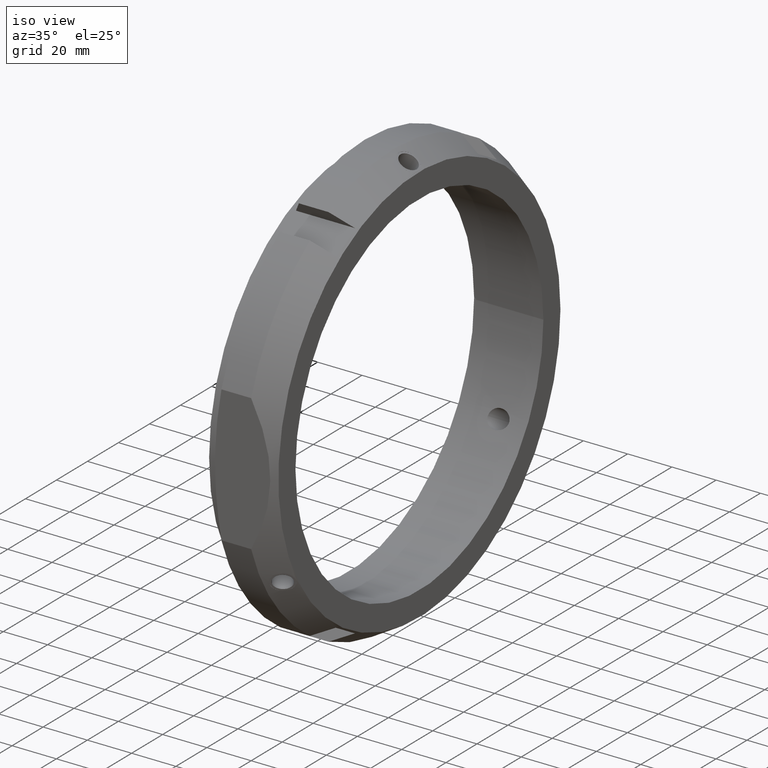
[diagram: clean part render]
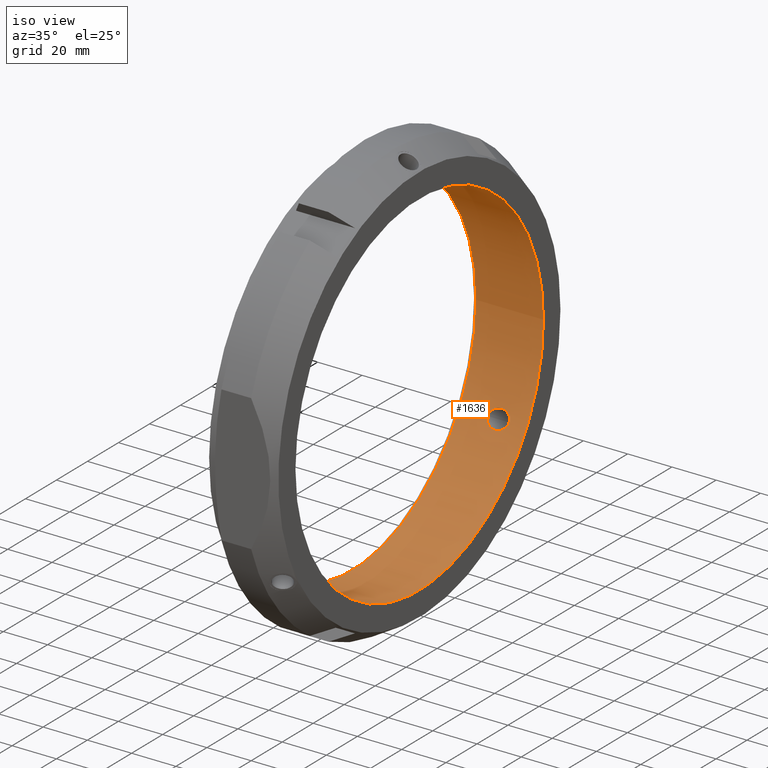
[diagram: same view with one face highlighted and labeled with its STEP entity id]
A machine part, iso view. The second image highlights one B-rep face of the part: STEP entity #1636.
In plain terms, the highlighted cylindrical surface (bore or boss wall) has radius 80 mm, axis along (1, 0, 0).
Its self-contained STEP definition (entity closure, byte-faithful):
#1226=CARTESIAN_POINT('',(19.124688457845835,71.281032686768683,-36.318237555088146));
#1227=VERTEX_POINT('',#1226);
#1228=CARTESIAN_POINT('',(19.124688457845835,71.281032686768683,-36.318237555088146));
#1229=CARTESIAN_POINT('',(19.719975805686062,71.281032686768683,-36.318237555088146));
#1230=CARTESIAN_POINT('',(20.360835346041156,71.23558601273146,-36.407905735789306));
#1231=CARTESIAN_POINT('',(21.5620970087312,71.04299453533622,-36.782295228732018));
#1232=CARTESIAN_POINT('',(22.122473254714528,70.89561317316452,-37.066977839368974));
#1233=CARTESIAN_POINT('',(22.992383798756826,70.549508829389197,-37.721246131857356));
#1234=CARTESIAN_POINT('',(23.372628686393831,70.333180375553383,-38.124913359558789));
#1235=CARTESIAN_POINT('',(23.888888306341801,69.836460331147663,-39.027350535639641));
#1236=CARTESIAN_POINT('',(24.023907389902401,69.555483973320392,-39.526367813166303));
#1237=CARTESIAN_POINT('',(24.023907389902401,69.02036750854019,-40.453216718132268));
#1238=CARTESIAN_POINT('',(23.900107951823905,68.740284912769042,-40.927031742936286));
#1239=CARTESIAN_POINT('',(23.422376752647224,68.224709866853289,-41.780828856997189));
#1240=CARTESIAN_POINT('',(23.069407454521361,67.989271797130954,-42.161381950695358));
#1241=CARTESIAN_POINT('',(22.222375564253127,67.582745468896519,-42.810567678910338));
#1242=CARTESIAN_POINT('',(21.647730878069421,67.397296066202813,-43.100530326154129));
#1243=CARTESIAN_POINT('',(20.408223794642137,67.152331054892784,-43.481210483176639));
#1244=CARTESIAN_POINT('',(19.743360965910281,67.09303268676868,-43.572066337186612));
#1245=CARTESIAN_POINT('',(18.518693329207895,67.09303268676868,-43.572066337186612));
#1246=CARTESIAN_POINT('',(17.866740980056516,67.150118559278894,-43.484609644367112));
#1247=CARTESIAN_POINT('',(16.6552434791301,67.391426132749658,-43.109690121165265));
#1248=CARTESIAN_POINT('',(16.095836631545854,67.575633166111984,-42.821771092296558));
#1249=CARTESIAN_POINT('',(15.270006957541876,67.983296160651207,-42.171052000097447));
#1250=CARTESIAN_POINT('',(14.927836800347817,68.221479238673325,-41.786143642201466));
#1251=CARTESIAN_POINT('',(14.468717883815415,68.74052892074954,-40.926662627070897));
#1252=CARTESIAN_POINT('',(14.35213568043779,69.021199417263404,-40.451775809956388));
#1253=CARTESIAN_POINT('',(14.35213568043779,69.542865188246722,-39.548224190043683));
#1254=CARTESIAN_POINT('',(14.468717883815415,69.813793987533302,-39.067713001412642));
#1255=CARTESIAN_POINT('',(14.927836800347817,70.298601539668709,-38.1884622833431));
#1256=CARTESIAN_POINT('',(15.27000695754187,70.512850416724518,-37.78973550807639));
#1257=CARTESIAN_POINT('',(16.095836631545847,70.872558184026872,-37.11132945252303));
#1258=CARTESIAN_POINT('',(16.655243479130093,71.029799860578962,-36.807841967641146));
#1259=CARTESIAN_POINT('',(17.866740980056509,71.233835905311125,-36.411403717288955));
#1260=CARTESIAN_POINT('',(18.518693329207895,71.281032686768683,-36.318237555088146));
#1261=CARTESIAN_POINT('',(19.124688457845838,71.281032686768683,-36.318237555088146));
#1262=B_SPLINE_CURVE_WITH_KNOTS('',3,(#1228,#1229,#1230,#1231,#1232,#1233,#1234,#1235,#1236,#1237,#1238,#1239,#1240,#1241,#1242,#1243,#1244,#1245,#1246,#1247,#1248,#1249,#1250,#1251,#1252,#1253,#1254,#1255,#1256,#1257,#1258,#1259,#1260,#1261),.UNSPECIFIED.,.T.,.U.,(4,2,2,2,2,2,2,2,2,2,2,2,2,2,2,2,4),(0.0,0.178586204352068,0.357172408704136,0.521243411043331,0.685314413382526,0.842313289911455,0.999312166440383,1.184913918859718,1.370515671279052,1.552314209870434,1.734112748461816,1.890612479756813,2.047112211051809,2.203611942346806,2.360111673641802,2.541910212233185,2.723708750824567),.UNSPECIFIED.);
#1263=EDGE_CURVE('',#1227,#1227,#1262,.T.);
#1331=CARTESIAN_POINT('',(19.124688457845838,-67.093032686768709,-43.572066337186556));
#1332=VERTEX_POINT('',#1331);
#1333=CARTESIAN_POINT('',(19.124688457845838,-67.093032686768709,-43.572066337186556));
#1334=CARTESIAN_POINT('',(19.719975805686069,-67.093032686768709,-43.572066337186556));
#1335=CARTESIAN_POINT('',(20.360835346041167,-67.147964272148428,-43.487874272602255));
#1336=CARTESIAN_POINT('',(21.562097008731204,-67.375899345249181,-43.13389041415423));
#1337=CARTESIAN_POINT('',(22.122473254714539,-67.548751036990623,-42.863913105150715));
#1338=CARTESIAN_POINT('',(22.992383798756837,-67.942311827288563,-42.237043804836958));
#1339=CARTESIAN_POINT('',(23.372628686393835,-68.183733674235313,-41.847864254403));
#1340=CARTESIAN_POINT('',(23.888888306341801,-68.716907171837974,-40.966473489338277));
#1341=CARTESIAN_POINT('',(24.023907389902412,-69.008580632189776,-40.473632186833711));
#1342=CARTESIAN_POINT('',(24.023907389902412,-69.543697096969993,-39.546783281867761));
#1343=CARTESIAN_POINT('',(23.900107951823927,-69.813991647259442,-39.067317126370043));
#1344=CARTESIAN_POINT('',(23.422376752647239,-70.295614114756148,-38.193917482019202));
#1345=CARTESIAN_POINT('',(23.069407454521365,-70.507463726526368,-37.799745585772619));
#1346=CARTESIAN_POINT('',(22.222375564253127,-70.866411894817617,-37.123090594106891));
#1347=CARTESIAN_POINT('',(21.647730878069424,-71.024802212132457,-36.817505376635602));
#1348=CARTESIAN_POINT('',(20.40822379464214,-71.231998393175587,-36.415019375291521));
#1349=CARTESIAN_POINT('',(19.743360965910284,-71.281032686768697,-36.318237555088096));
#1350=CARTESIAN_POINT('',(18.518693329207895,-71.281032686768697,-36.318237555088096));
#1351=CARTESIAN_POINT('',(17.866740980056516,-71.233835905311167,-36.411403717288898));
#1352=CARTESIAN_POINT('',(16.655243479130103,-71.029799860579004,-36.807841967641089));
#1353=CARTESIAN_POINT('',(16.095836631545861,-70.8725581840269,-37.11132945252298));
#1354=CARTESIAN_POINT('',(15.270006957541884,-70.512850416724561,-37.78973550807634));
#1355=CARTESIAN_POINT('',(14.927836800347826,-70.298601539668738,-38.188462283343043));
#1356=CARTESIAN_POINT('',(14.468717883815422,-69.81379398753333,-39.067713001412578));
#1357=CARTESIAN_POINT('',(14.352135680437794,-69.542865188246765,-39.548224190043634));
#1358=CARTESIAN_POINT('',(14.352135680437794,-69.021199417263432,-40.451775809956331));
#1359=CARTESIAN_POINT('',(14.468717883815421,-68.740528920749583,-40.926662627070826));
#1360=CARTESIAN_POINT('',(14.927836800347819,-68.221479238673354,-41.786143642201417));
#1361=CARTESIAN_POINT('',(15.270006957541874,-67.983296160651236,-42.17105200009739));
#1362=CARTESIAN_POINT('',(16.095836631545851,-67.575633166111999,-42.821771092296501));
#1363=CARTESIAN_POINT('',(16.6552434791301,-67.3914261327497,-43.109690121165222));
#1364=CARTESIAN_POINT('',(17.866740980056516,-67.150118559278937,-43.484609644367069));
#1365=CARTESIAN_POINT('',(18.518693329207895,-67.093032686768709,-43.572066337186556));
#1366=CARTESIAN_POINT('',(19.124688457845835,-67.093032686768709,-43.572066337186556));
#1367=B_SPLINE_CURVE_WITH_KNOTS('',3,(#1333,#1334,#1335,#1336,#1337,#1338,#1339,#1340,#1341,#1342,#1343,#1344,#1345,#1346,#1347,#1348,#1349,#1350,#1351,#1352,#1353,#1354,#1355,#1356,#1357,#1358,#1359,#1360,#1361,#1362,#1363,#1364,#1365,#1366),.UNSPECIFIED.,.T.,.U.,(4,2,2,2,2,2,2,2,2,2,2,2,2,2,2,2,4),(0.0,0.178586204352068,0.357172408704137,0.521243411043332,0.685314413382527,0.842313289911456,0.999312166440384,1.184913918859719,1.370515671279053,1.552314209870435,1.734112748461816,1.890612479756813,2.047112211051811,2.203611942346807,2.360111673641804,2.541910212233186,2.723708750824568),.UNSPECIFIED.);
#1368=EDGE_CURVE('',#1332,#1332,#1367,.T.);
#1404=CARTESIAN_POINT('',(19.124688457845831,-4.188000000000001,79.890303892274687));
#1405=VERTEX_POINT('',#1404);
#1406=CARTESIAN_POINT('',(19.124688457845831,-4.188000000000001,79.890303892274687));
#1407=CARTESIAN_POINT('',(19.743360965910281,-4.188000000000001,79.890303892274687));
#1408=CARTESIAN_POINT('',(20.40822379464214,-4.079667338282783,79.896229858468146));
#1409=CARTESIAN_POINT('',(21.647730878069424,-3.627506145929621,79.918035702789723));
#1410=CARTESIAN_POINT('',(22.222375564253127,-3.283666425921074,79.933658273017215));
#1411=CARTESIAN_POINT('',(23.069407454521365,-2.518191929395378,79.961127536467956));
#1412=CARTESIAN_POINT('',(23.422376752647235,-2.070904247902845,79.974746339016377));
#1413=CARTESIAN_POINT('',(23.900107951823916,-1.073706734490375,79.994348869306307));
#1414=CARTESIAN_POINT('',(24.023907389902412,-0.523329588429763,80.0));
#1415=CARTESIAN_POINT('',(24.023907389902412,0.523329588429762,80.0));
#1416=CARTESIAN_POINT('',(23.900107951823916,1.073706734490374,79.994348869306307));
#1417=CARTESIAN_POINT('',(23.422376752647235,2.070904247902843,79.974746339016377));
#1418=CARTESIAN_POINT('',(23.069407454521365,2.518191929395377,79.961127536467956));
#1419=CARTESIAN_POINT('',(22.222375564253127,3.283666425921074,79.933658273017215));
#1420=CARTESIAN_POINT('',(21.647730878069424,3.627506145929621,79.918035702789723));
#1421=CARTESIAN_POINT('',(20.40822379464214,4.079667338282783,79.896229858468146));
#1422=CARTESIAN_POINT('',(19.743360965910281,4.188000000000001,79.890303892274687));
#1423=CARTESIAN_POINT('',(18.518693329207899,4.188000000000001,79.890303892274687));
#1424=CARTESIAN_POINT('',(17.866740980056523,4.083717346032231,79.896013361656003));
#1425=CARTESIAN_POINT('',(16.655243479130107,3.6383737278293,79.91753208880634));
#1426=CARTESIAN_POINT('',(16.095836631545861,3.296925017914896,79.93310054481951));
#1427=CARTESIAN_POINT('',(15.270006957541881,2.52955425607331,79.960787508173766));
#1428=CARTESIAN_POINT('',(14.92783680034783,2.077122300995387,79.974605925544495));
#1429=CARTESIAN_POINT('',(14.468717883815426,1.073265066783751,79.994375628483454));
#1430=CARTESIAN_POINT('',(14.35213568043779,0.521665770983325,80.0));
#1431=CARTESIAN_POINT('',(14.35213568043779,-0.521665770983322,80.0));
#1432=CARTESIAN_POINT('',(14.468717883815421,-1.073265066783747,79.994375628483454));
#1433=CARTESIAN_POINT('',(14.927836800347823,-2.077122300995383,79.974605925544495));
#1434=CARTESIAN_POINT('',(15.270006957541879,-2.529554256073305,79.960787508173766));
#1435=CARTESIAN_POINT('',(16.095836631545858,-3.296925017914893,79.93310054481951));
#1436=CARTESIAN_POINT('',(16.6552434791301,-3.6383737278293,79.917532088806325));
#1437=CARTESIAN_POINT('',(17.866740980056516,-4.083717346032233,79.896013361655989));
#1438=CARTESIAN_POINT('',(18.518693329207892,-4.188,79.890303892274687));
#1439=CARTESIAN_POINT('',(19.124688457845835,-4.188,79.890303892274687));
#1440=B_SPLINE_CURVE_WITH_KNOTS('',3,(#1406,#1407,#1408,#1409,#1410,#1411,#1412,#1413,#1414,#1415,#1416,#1417,#1418,#1419,#1420,#1421,#1422,#1423,#1424,#1425,#1426,#1427,#1428,#1429,#1430,#1431,#1432,#1433,#1434,#1435,#1436,#1437,#1438,#1439),.UNSPECIFIED.,.T.,.U.,(4,2,2,2,2,2,2,2,2,2,2,2,2,2,2,2,4),(0.0,0.185601752419335,0.371203504838669,0.528202381367598,0.685201257896527,0.842200134425455,0.999199010954384,1.184800763373718,1.370402515793053,1.552201054384434,1.733999592975815,1.890499324270813,2.04699905556581,2.203498786860807,2.359998518155804,2.541797056747185,2.723595595338566),.UNSPECIFIED.);
#1441=EDGE_CURVE('',#1405,#1405,#1440,.T.);
#1520=CARTESIAN_POINT('',(1.499999999999977,80.0,0.0));
#1521=VERTEX_POINT('',#1520);
#1522=CARTESIAN_POINT('',(1.499999999999977,0.0,0.0));
#1523=DIRECTION('',(1.0,0.0,0.0));
#1524=DIRECTION('',(0.0,1.0,0.0));
#1525=AXIS2_PLACEMENT_3D('',#1522,#1523,#1524);
#1526=CIRCLE('',#1525,80.0);
#1527=EDGE_CURVE('',#1521,#1521,#1526,.T.);
#1604=CARTESIAN_POINT('',(31.999999999999986,80.0,0.0));
#1605=VERTEX_POINT('',#1604);
#1606=CARTESIAN_POINT('',(31.999999999999986,0.0,0.0));
#1607=DIRECTION('',(1.0,0.0,0.0));
#1608=DIRECTION('',(0.0,1.0,0.0));
#1609=AXIS2_PLACEMENT_3D('',#1606,#1607,#1608);
#1610=CIRCLE('',#1609,80.0);
#1611=EDGE_CURVE('',#1605,#1605,#1610,.T.);
#1616=CARTESIAN_POINT('',(16.749999999999979,0.0,0.0));
#1617=DIRECTION('',(1.0,0.0,0.0));
#1618=DIRECTION('',(0.0,1.0,0.0));
#1619=AXIS2_PLACEMENT_3D('',#1616,#1617,#1618);
#1620=CYLINDRICAL_SURFACE('',#1619,80.0);
#1621=ORIENTED_EDGE('',*,*,#1527,.F.);
#1622=EDGE_LOOP('',(#1621));
#1623=FACE_OUTER_BOUND('',#1622,.T.);
#1624=ORIENTED_EDGE('',*,*,#1263,.T.);
#1625=EDGE_LOOP('',(#1624));
#1626=FACE_BOUND('',#1625,.T.);
#1627=ORIENTED_EDGE('',*,*,#1368,.T.);
#1628=EDGE_LOOP('',(#1627));
#1629=FACE_BOUND('',#1628,.T.);
#1630=ORIENTED_EDGE('',*,*,#1441,.T.);
#1631=EDGE_LOOP('',(#1630));
#1632=FACE_BOUND('',#1631,.T.);
#1633=ORIENTED_EDGE('',*,*,#1611,.T.);
#1634=EDGE_LOOP('',(#1633));
#1635=FACE_BOUND('',#1634,.T.);
#1636=ADVANCED_FACE('',(#1623,#1626,#1629,#1632,#1635),#1620,.F.);